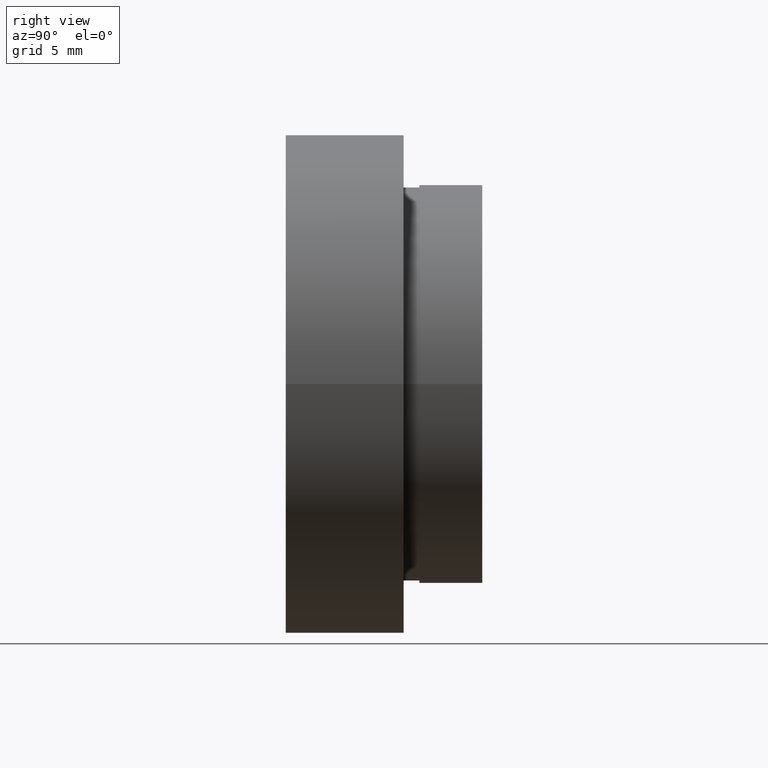
[diagram: clean part render]
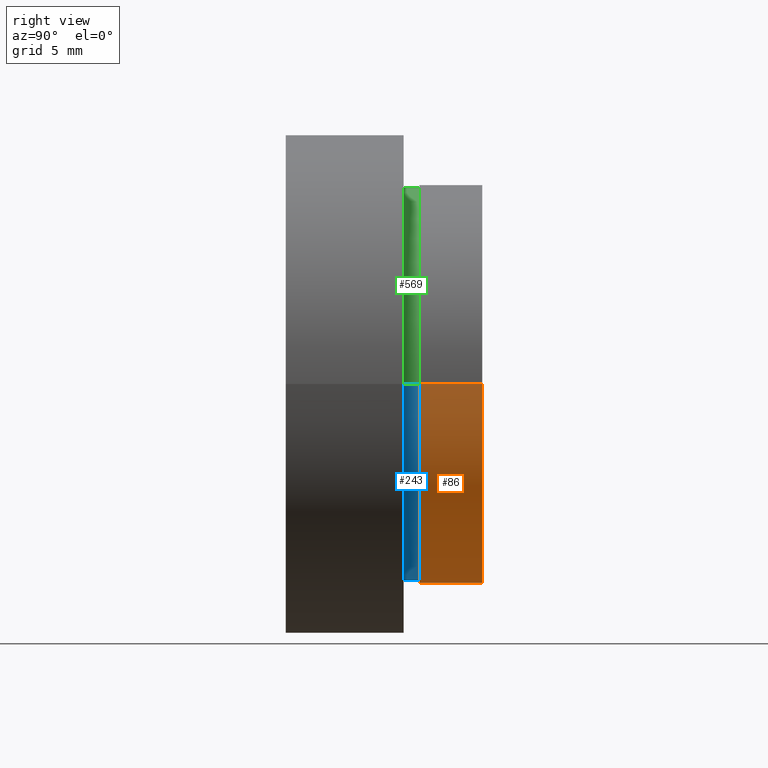
[diagram: same view with three faces highlighted in distinct colors, each labeled with its STEP entity id]
A machine part, right view with three faces highlighted in distinct colors.
Their STEP definitions:

[orange] entity #86 — the highlighted cylindrical surface (partial cylindrical patch) has radius 12.7 mm, axis along (-0, 1, -0).
#8 = DIRECTION ( 'NONE',  ( -1.224646799147351000E-016, 1.000000000000000000, -0.0000000000000000000 ) ) ;
#17 = CARTESIAN_POINT ( 'NONE',  ( 5.371323195044474300E-016, 12.49999999999999600, 0.0000000000000000000 ) ) ;
#58 = CARTESIAN_POINT ( 'NONE',  ( 0.0000000000000000000, 16.88601823708207700, 0.0000000000000000000 ) ) ;
#79 = ORIENTED_EDGE ( 'NONE', *, *, #567, .T. ) ;
#86 = ADVANCED_FACE ( 'NONE', ( #301 ), #121, .T. ) ;
#121 = CYLINDRICAL_SURFACE ( 'NONE', #607, 12.69999999999999900 ) ;
#148 = ORIENTED_EDGE ( 'NONE', *, *, #326, .T. ) ;
#162 = AXIS2_PLACEMENT_3D ( 'NONE', #17, #369, #566 ) ;
#183 = DIRECTION ( 'NONE',  ( -1.224646799147351000E-016, 1.000000000000000000, -0.0000000000000000000 ) ) ;
#208 = CARTESIAN_POINT ( 'NONE',  ( -12.69999999999999600, 8.499999999999996400, 0.0000000000000000000 ) ) ;
#239 = VECTOR ( 'NONE', #358, 1000.000000000000000 ) ;
#259 = CARTESIAN_POINT ( 'NONE',  ( -12.69999999999999900, 16.88601823708207700, 0.0000000000000000000 ) ) ;
#268 = DIRECTION ( 'NONE',  ( -1.000000000000000000, -1.365923996832131900E-016, 0.0000000000000000000 ) ) ;
#286 = CARTESIAN_POINT ( 'NONE',  ( 12.69999999999999900, 12.49999999999999800, 1.555301434917138400E-015 ) ) ;
#298 = EDGE_CURVE ( 'NONE', #556, #338, #624, .T. ) ;
#299 = VERTEX_POINT ( 'NONE', #555 ) ;
#300 = CARTESIAN_POINT ( 'NONE',  ( 12.69999999999999900, 8.500000000000000000, 1.555301434917138400E-015 ) ) ;
#301 = FACE_OUTER_BOUND ( 'NONE', #526, .T. ) ;
#316 = EDGE_CURVE ( 'NONE', #338, #299, #355, .T. ) ;
#326 = EDGE_CURVE ( 'NONE', #556, #331, #343, .T. ) ;
#331 = VERTEX_POINT ( 'NONE', #208 ) ;
#338 = VERTEX_POINT ( 'NONE', #286 ) ;
#343 = CIRCLE ( 'NONE', #511, 12.69999999999999800 ) ;
#349 = ORIENTED_EDGE ( 'NONE', *, *, #316, .F. ) ;
#355 = CIRCLE ( 'NONE', #162, 12.69999999999999900 ) ;
#358 = DIRECTION ( 'NONE',  ( -1.224646799147351000E-016, 1.000000000000000000, -0.0000000000000000000 ) ) ;
#368 = VECTOR ( 'NONE', #8, 1000.000000000000000 ) ;
#369 = DIRECTION ( 'NONE',  ( -1.224646799147351000E-016, 1.000000000000000000, -0.0000000000000000000 ) ) ;
#383 = CARTESIAN_POINT ( 'NONE',  ( 12.69999999999999900, 16.88601823708207700, 1.555301434917138400E-015 ) ) ;
#387 = DIRECTION ( 'NONE',  ( -1.000000000000000000, 0.0000000000000000000, 0.0000000000000000000 ) ) ;
#489 = LINE ( 'NONE', #259, #368 ) ;
#500 = ORIENTED_EDGE ( 'NONE', *, *, #298, .F. ) ;
#511 = AXIS2_PLACEMENT_3D ( 'NONE', #617, #183, #268 ) ;
#526 = EDGE_LOOP ( 'NONE', ( #500, #148, #79, #349 ) ) ;
#555 = CARTESIAN_POINT ( 'NONE',  ( -12.69999999999999900, 12.49999999999999500, 0.0000000000000000000 ) ) ;
#556 = VERTEX_POINT ( 'NONE', #300 ) ;
#566 = DIRECTION ( 'NONE',  ( -1.000000000000000000, -1.365923996832131600E-016, 0.0000000000000000000 ) ) ;
#567 = EDGE_CURVE ( 'NONE', #331, #299, #489, .T. ) ;
#607 = AXIS2_PLACEMENT_3D ( 'NONE', #58, #610, #387 ) ;
#610 = DIRECTION ( 'NONE',  ( -1.224646799147351000E-016, 1.000000000000000000, -0.0000000000000000000 ) ) ;
#617 = CARTESIAN_POINT ( 'NONE',  ( 1.026991039163387700E-015, 8.499999999999998200, 0.0000000000000000000 ) ) ;
#624 = LINE ( 'NONE', #383, #239 ) ;

[blue] entity #243 — the highlighted cylindrical surface (partial cylindrical patch) has radius 12.55 mm, axis along (-0, 1, -0).
#5 = AXIS2_PLACEMENT_3D ( 'NONE', #470, #411, #72 ) ;
#24 = ORIENTED_EDGE ( 'NONE', *, *, #363, .T. ) ;
#42 = EDGE_LOOP ( 'NONE', ( #459, #244, #24, #418 ) ) ;
#52 = AXIS2_PLACEMENT_3D ( 'NONE', #426, #366, #78 ) ;
#72 = DIRECTION ( 'NONE',  ( -1.000000000000000000, 0.0000000000000000000, 0.0000000000000000000 ) ) ;
#78 = DIRECTION ( 'NONE',  ( -1.000000000000000000, -1.382249781654826400E-016, 0.0000000000000000000 ) ) ;
#105 = DIRECTION ( 'NONE',  ( -1.000000000000000000, -1.382249781654826400E-016, 0.0000000000000000000 ) ) ;
#106 = LINE ( 'NONE', #423, #220 ) ;
#173 = VERTEX_POINT ( 'NONE', #582 ) ;
#182 = EDGE_CURVE ( 'NONE', #200, #173, #272, .T. ) ;
#197 = CARTESIAN_POINT ( 'NONE',  ( -12.54999999999999900, 8.499999999999996400, 0.0000000000000000000 ) ) ;
#200 = VERTEX_POINT ( 'NONE', #320 ) ;
#220 = VECTOR ( 'NONE', #335, 1000.000000000000000 ) ;
#227 = CYLINDRICAL_SURFACE ( 'NONE', #5, 12.55000000000000100 ) ;
#243 = ADVANCED_FACE ( 'NONE', ( #319 ), #227, .T. ) ;
#244 = ORIENTED_EDGE ( 'NONE', *, *, #182, .T. ) ;
#272 = CIRCLE ( 'NONE', #529, 12.55000000000000100 ) ;
#291 = VERTEX_POINT ( 'NONE', #197 ) ;
#308 = EDGE_CURVE ( 'NONE', #200, #455, #106, .T. ) ;
#311 = CARTESIAN_POINT ( 'NONE',  ( 1.149455719078122700E-015, 7.499999999999998200, 0.0000000000000000000 ) ) ;
#319 = FACE_OUTER_BOUND ( 'NONE', #42, .T. ) ;
#320 = CARTESIAN_POINT ( 'NONE',  ( 12.55000000000000200, 7.500000000000000000, 1.536931732929928400E-015 ) ) ;
#333 = CIRCLE ( 'NONE', #52, 12.55000000000000100 ) ;
#335 = DIRECTION ( 'NONE',  ( -1.224646799147351000E-016, 1.000000000000000000, -0.0000000000000000000 ) ) ;
#363 = EDGE_CURVE ( 'NONE', #173, #291, #590, .T. ) ;
#366 = DIRECTION ( 'NONE',  ( -1.224646799147351000E-016, 1.000000000000000000, -0.0000000000000000000 ) ) ;
#411 = DIRECTION ( 'NONE',  ( -1.224646799147351000E-016, 1.000000000000000000, -0.0000000000000000000 ) ) ;
#418 = ORIENTED_EDGE ( 'NONE', *, *, #441, .F. ) ;
#423 = CARTESIAN_POINT ( 'NONE',  ( 12.55000000000000100, 16.88601823708207700, 1.536931732929928400E-015 ) ) ;
#426 = CARTESIAN_POINT ( 'NONE',  ( 1.026991039163387700E-015, 8.499999999999998200, 0.0000000000000000000 ) ) ;
#441 = EDGE_CURVE ( 'NONE', #455, #291, #333, .T. ) ;
#444 = VECTOR ( 'NONE', #576, 1000.000000000000000 ) ;
#455 = VERTEX_POINT ( 'NONE', #474 ) ;
#459 = ORIENTED_EDGE ( 'NONE', *, *, #308, .F. ) ;
#470 = CARTESIAN_POINT ( 'NONE',  ( 0.0000000000000000000, 16.88601823708207700, 0.0000000000000000000 ) ) ;
#471 = CARTESIAN_POINT ( 'NONE',  ( -12.55000000000000100, 16.88601823708207700, 0.0000000000000000000 ) ) ;
#474 = CARTESIAN_POINT ( 'NONE',  ( 12.55000000000000200, 8.500000000000000000, 1.536931732929928400E-015 ) ) ;
#520 = DIRECTION ( 'NONE',  ( -1.224646799147351000E-016, 1.000000000000000000, -0.0000000000000000000 ) ) ;
#529 = AXIS2_PLACEMENT_3D ( 'NONE', #311, #520, #105 ) ;
#576 = DIRECTION ( 'NONE',  ( -1.224646799147351000E-016, 1.000000000000000000, -0.0000000000000000000 ) ) ;
#582 = CARTESIAN_POINT ( 'NONE',  ( -12.54999999999999900, 7.499999999999996400, 0.0000000000000000000 ) ) ;
#590 = LINE ( 'NONE', #471, #444 ) ;

[green] entity #569 — the highlighted cylindrical surface (partial cylindrical patch) has radius 12.55 mm, axis along (-0, 1, -0).
#87 = ORIENTED_EDGE ( 'NONE', *, *, #422, .F. ) ;
#90 = EDGE_LOOP ( 'NONE', ( #533, #111, #87, #524 ) ) ;
#106 = LINE ( 'NONE', #423, #220 ) ;
#111 = ORIENTED_EDGE ( 'NONE', *, *, #308, .T. ) ;
#113 = CIRCLE ( 'NONE', #306, 12.55000000000000100 ) ;
#123 = CARTESIAN_POINT ( 'NONE',  ( 1.026991039163387700E-015, 8.499999999999998200, 0.0000000000000000000 ) ) ;
#137 = AXIS2_PLACEMENT_3D ( 'NONE', #123, #256, #377 ) ;
#173 = VERTEX_POINT ( 'NONE', #582 ) ;
#197 = CARTESIAN_POINT ( 'NONE',  ( -12.54999999999999900, 8.499999999999996400, 0.0000000000000000000 ) ) ;
#200 = VERTEX_POINT ( 'NONE', #320 ) ;
#220 = VECTOR ( 'NONE', #335, 1000.000000000000000 ) ;
#256 = DIRECTION ( 'NONE',  ( -1.224646799147351000E-016, 1.000000000000000000, -0.0000000000000000000 ) ) ;
#291 = VERTEX_POINT ( 'NONE', #197 ) ;
#306 = AXIS2_PLACEMENT_3D ( 'NONE', #356, #585, #456 ) ;
#308 = EDGE_CURVE ( 'NONE', #200, #455, #106, .T. ) ;
#320 = CARTESIAN_POINT ( 'NONE',  ( 12.55000000000000200, 7.500000000000000000, 1.536931732929928400E-015 ) ) ;
#335 = DIRECTION ( 'NONE',  ( -1.224646799147351000E-016, 1.000000000000000000, -0.0000000000000000000 ) ) ;
#356 = CARTESIAN_POINT ( 'NONE',  ( 1.149455719078122700E-015, 7.499999999999998200, 0.0000000000000000000 ) ) ;
#363 = EDGE_CURVE ( 'NONE', #173, #291, #590, .T. ) ;
#377 = DIRECTION ( 'NONE',  ( -1.000000000000000000, -1.382249781654826400E-016, 0.0000000000000000000 ) ) ;
#382 = FACE_OUTER_BOUND ( 'NONE', #90, .T. ) ;
#422 = EDGE_CURVE ( 'NONE', #291, #455, #612, .T. ) ;
#423 = CARTESIAN_POINT ( 'NONE',  ( 12.55000000000000100, 16.88601823708207700, 1.536931732929928400E-015 ) ) ;
#429 = AXIS2_PLACEMENT_3D ( 'NONE', #493, #467, #592 ) ;
#433 = EDGE_CURVE ( 'NONE', #173, #200, #113, .T. ) ;
#444 = VECTOR ( 'NONE', #576, 1000.000000000000000 ) ;
#455 = VERTEX_POINT ( 'NONE', #474 ) ;
#456 = DIRECTION ( 'NONE',  ( -1.000000000000000000, -1.382249781654826400E-016, 0.0000000000000000000 ) ) ;
#467 = DIRECTION ( 'NONE',  ( -1.224646799147351000E-016, 1.000000000000000000, -0.0000000000000000000 ) ) ;
#471 = CARTESIAN_POINT ( 'NONE',  ( -12.55000000000000100, 16.88601823708207700, 0.0000000000000000000 ) ) ;
#474 = CARTESIAN_POINT ( 'NONE',  ( 12.55000000000000200, 8.500000000000000000, 1.536931732929928400E-015 ) ) ;
#493 = CARTESIAN_POINT ( 'NONE',  ( 0.0000000000000000000, 16.88601823708207700, 0.0000000000000000000 ) ) ;
#524 = ORIENTED_EDGE ( 'NONE', *, *, #363, .F. ) ;
#533 = ORIENTED_EDGE ( 'NONE', *, *, #433, .T. ) ;
#569 = ADVANCED_FACE ( 'NONE', ( #382 ), #618, .T. ) ;
#576 = DIRECTION ( 'NONE',  ( -1.224646799147351000E-016, 1.000000000000000000, -0.0000000000000000000 ) ) ;
#582 = CARTESIAN_POINT ( 'NONE',  ( -12.54999999999999900, 7.499999999999996400, 0.0000000000000000000 ) ) ;
#585 = DIRECTION ( 'NONE',  ( -1.224646799147351000E-016, 1.000000000000000000, -0.0000000000000000000 ) ) ;
#590 = LINE ( 'NONE', #471, #444 ) ;
#592 = DIRECTION ( 'NONE',  ( -1.000000000000000000, 0.0000000000000000000, 0.0000000000000000000 ) ) ;
#612 = CIRCLE ( 'NONE', #137, 12.55000000000000100 ) ;
#618 = CYLINDRICAL_SURFACE ( 'NONE', #429, 12.55000000000000100 ) ;